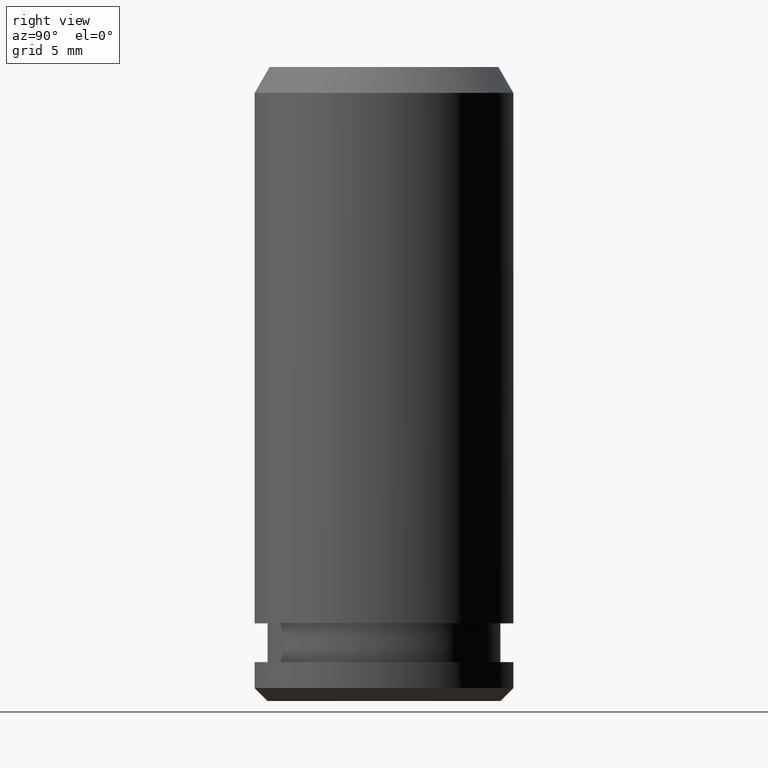
[diagram: clean part render]
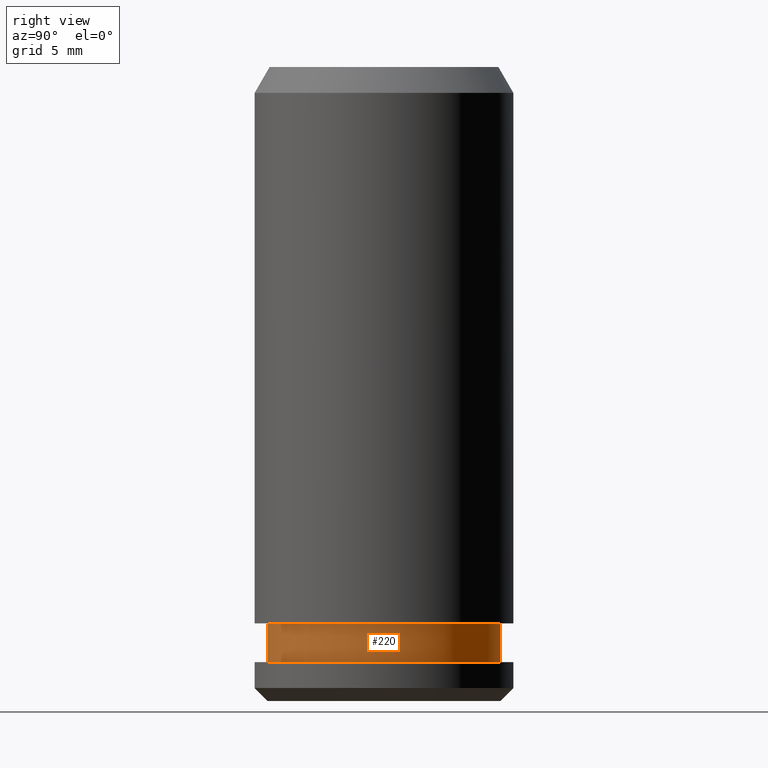
[diagram: same view with one face highlighted and labeled with its STEP entity id]
A machine part, right view. The second image highlights one B-rep face of the part: STEP entity #220.
In plain terms, the highlighted cylindrical surface (partial cylindrical patch) has radius 4.5 mm, axis along (0, -0, -1).
Its self-contained STEP definition (entity closure, byte-faithful):
#112=VERTEX_POINT('NONE',#283);
#128=EDGE_CURVE('NONE',#204,#226,#299,.T.);
#164=EDGE_CURVE('NONE',#170,#112,#344,.T.);
#170=VERTEX_POINT('NONE',#350);
#186=EDGE_CURVE('NONE',#204,#170,#366,.T.);
#204=VERTEX_POINT('NONE',#389);
#220=ADVANCED_FACE('NONE',(#406),#407,.T.);
#226=VERTEX_POINT('NONE',#414);
#248=EDGE_CURVE('NONE',#226,#112,#439,.T.);
#283=CARTESIAN_POINT('',(0.0,-4.5,1.5));
#299=LINE('',#493,#494);
#344=LINE('',#547,#548);
#350=CARTESIAN_POINT('',(0.0,-4.5,3.0));
#366=CIRCLE('',#577,4.5);
#389=CARTESIAN_POINT('',(-5.5107285922007E-016,4.5,3.0));
#406=FACE_OUTER_BOUND('',#627,.T.);
#407=CYLINDRICAL_SURFACE('',#628,4.5);
#414=CARTESIAN_POINT('',(-5.5107285922007E-016,4.5,1.5));
#439=CIRCLE('',#670,4.5);
#493=CARTESIAN_POINT('',(-5.5107285922007E-016,4.5,-1.13644490972339));
#494=VECTOR('',#706,1000.0);
#547=CARTESIAN_POINT('',(0.0,-4.5,-1.13644490972339));
#548=VECTOR('',#774,1000.0);
#577=AXIS2_PLACEMENT_3D('',#788,#789,#790);
#627=EDGE_LOOP('',(#847,#848,#849,#850));
#628=AXIS2_PLACEMENT_3D('',#851,#852,#853);
#670=AXIS2_PLACEMENT_3D('',#895,#896,#897);
#706=DIRECTION('',(0.0,0.0,-1.0));
#774=DIRECTION('',(0.0,0.0,-1.0));
#788=CARTESIAN_POINT('',(0.0,0.0,3.0));
#789=DIRECTION('',(0.0,0.0,-1.0));
#790=DIRECTION('',(0.0,-1.0,0.0));
#847=ORIENTED_EDGE('',*,*,#128,.F.);
#848=ORIENTED_EDGE('',*,*,#186,.T.);
#849=ORIENTED_EDGE('',*,*,#164,.T.);
#850=ORIENTED_EDGE('',*,*,#248,.F.);
#851=CARTESIAN_POINT('',(0.0,0.0,-1.13644490972339));
#852=DIRECTION('',(0.0,-0.0,-1.0));
#853=DIRECTION('',(0.0,-1.0,0.0));
#895=CARTESIAN_POINT('',(0.0,0.0,1.5));
#896=DIRECTION('',(0.0,0.0,-1.0));
#897=DIRECTION('',(0.0,-1.0,0.0));